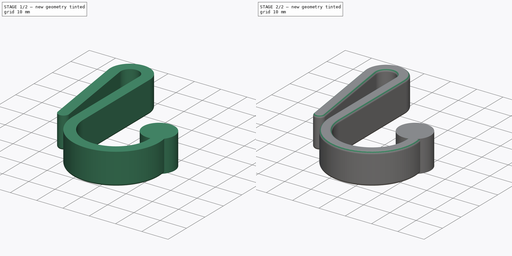
[diagram: build sequence overview — one tinted view per stage of 2, left to right]
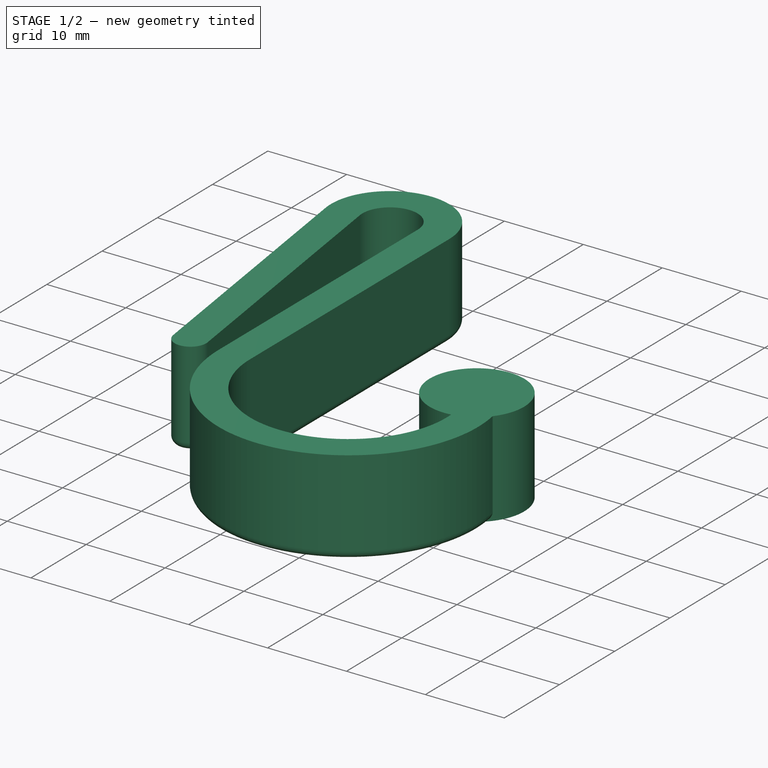
[diagram: stage 1 of 2 — iso view after this stage's code; geometry added in this stage tinted green]
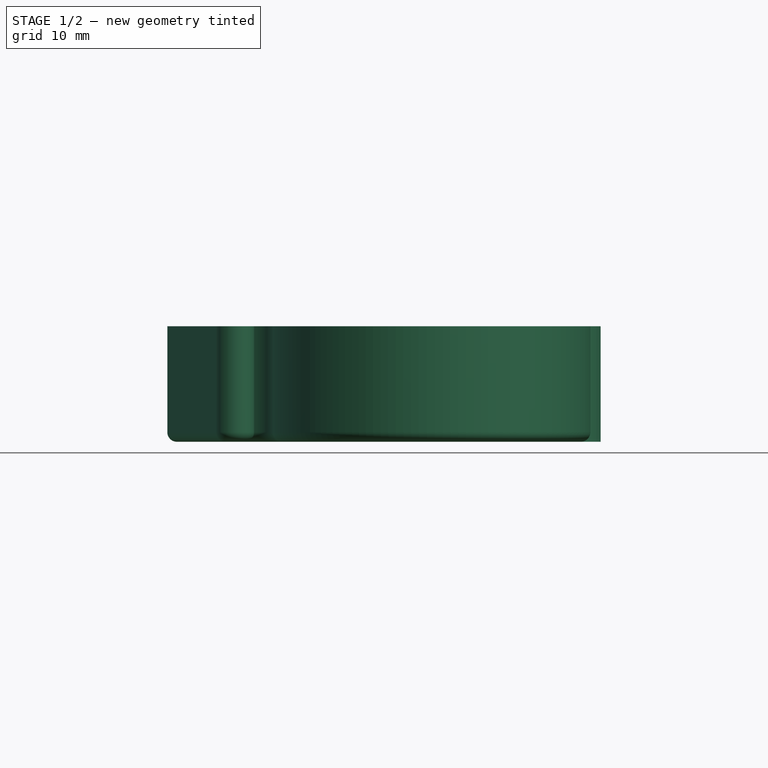
[diagram: stage 1 of 2 — front view after this stage's code; geometry added in this stage tinted green]
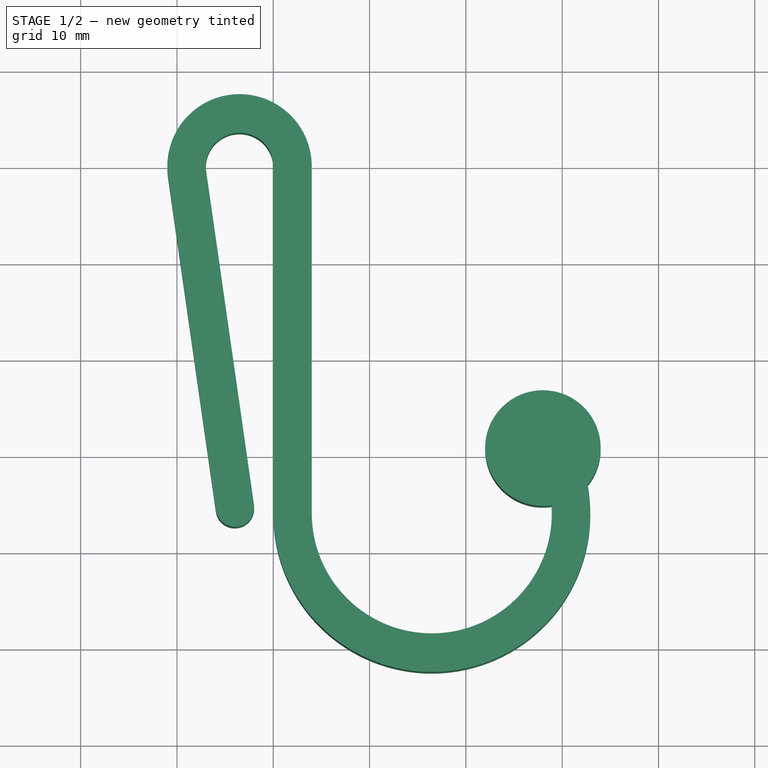
[diagram: stage 1 of 2 — top view after this stage's code; geometry added in this stage tinted green]
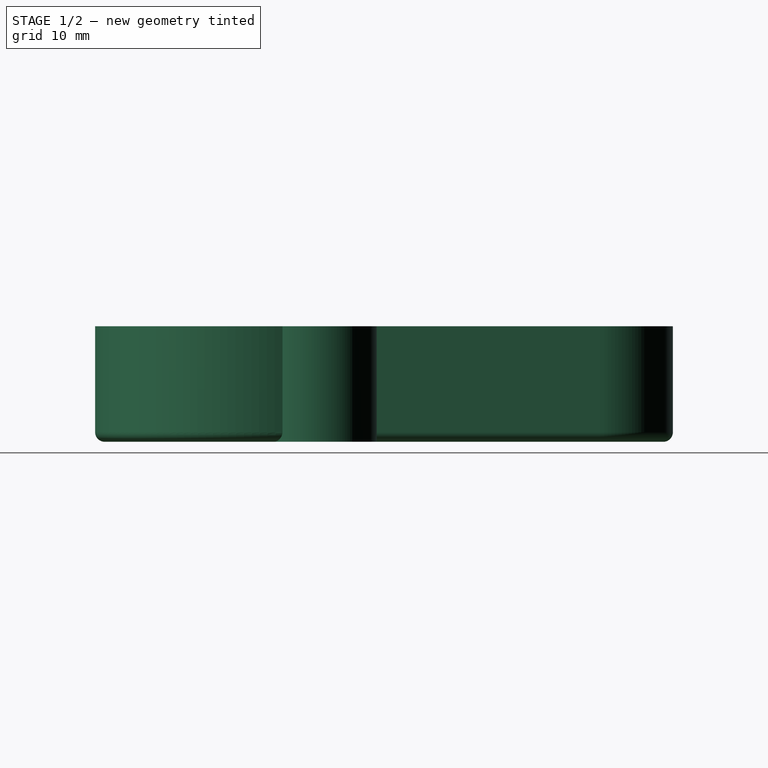
[diagram: stage 1 of 2 — right view after this stage's code; geometry added in this stage tinted green]
FCSTD DOCUMENT  (FreeCAD 0.16RUnknown)
Label: rolling_tray_hook
License: All rights reserved
LicenseURL: http://en.wikipedia.org/wiki/All_rights_reserved
objects: PartDesign::Fillet×2, Sketcher::SketchObject×1, PartDesign::Pad×1
note: 5 computed .brp shape members not serialized (recipe doc carries the construction recipe); baked Part::Feature solids carry a one-line shape summary decoded from their .brp

FEATURE [Sketcher::SketchObject] Sketch
  sketch-geometry (15):
    g0: LineSegment StartX=0 StartY=0 StartZ=0 EndX=0 EndY=-36.0373 EndZ=0
    g1: ArcOfCircle CenterX=-3.5 CenterY=0 CenterZ=0 NormalX=0 NormalY=0 NormalZ=1 Radius=3.5 StartAngle=0 EndAngle=3.28392
    g2: LineSegment StartX=-6.96461 StartY=-0.496461 StartZ=0 EndX=-2 EndY=-35.1426 EndZ=0
    g3: ArcOfCircle CenterX=-3.97978 CenterY=-35.4263 CenterZ=0 NormalX=0 NormalY=0 NormalZ=1 Radius=2 StartAngle=3.28392 EndAngle=6.42551
    g4: LineSegment StartX=-5.95955 StartY=-35.71 StartZ=0 EndX=-10.9242 EndY=-1.06385 EndZ=0
    g5: ArcOfCircle CenterX=-3.5 CenterY=0 CenterZ=0 NormalX=0 NormalY=0 NormalZ=1 Radius=7.5 StartAngle=0 EndAngle=3.28392
    g6: LineSegment StartX=4 StartY=0 StartZ=0 EndX=4 EndY=-36.0373 EndZ=0
    g7: ArcOfCircle CenterX=16.4627 CenterY=-36.0373 CenterZ=0 NormalX=0 NormalY=0 NormalZ=1 Radius=12.4627 StartAngle=3.14159 EndAngle=6.35154
    g8: ArcOfCircle CenterX=16.4627 CenterY=-36.0373 CenterZ=0 NormalX=0 NormalY=0 NormalZ=1 Radius=16.4627 StartAngle=3.14159 EndAngle=6.46603
    g9: ArcOfCircle CenterX=28 CenterY=-29.2534 CenterZ=0 NormalX=0 NormalY=0 NormalZ=1 Radius=6 StartAngle=5.59934 EndAngle=11.1455
    g10: LineSegment [constr] StartX=0 StartY=-36.0373 StartZ=0 EndX=4 EndY=-36.0373 EndZ=0
    g11: LineSegment [constr] StartX=-5.95955 StartY=-35.71 StartZ=0 EndX=-2 EndY=-35.1426 EndZ=0
    g12: LineSegment [constr] StartX=22 StartY=-5.52926 StartZ=0 EndX=22 EndY=-23.6266 EndZ=0
    g13: LineSegment [constr] StartX=-16.5806 StartY=7.5 StartZ=0 EndX=51.6928 EndY=7.5 EndZ=0
    g14: LineSegment [constr] StartX=-14.1831 StartY=-52.5 StartZ=0 EndX=61.8698 EndY=-52.5 EndZ=0
  constraints (41):
    c: Coincident(g0,g-1)
    c: PointOnObject(g0,g-2)
    c: PointOnObject(g1,g-1)
    c: Coincident(g1,g-1)
    c: Coincident(g2,g1)
    c: Coincident(g3,g2)
    c: Coincident(g4,g3)
    c: Coincident(g5,g1)
    c: PointOnObject(g5,g-1)
    c: Coincident(g5,g4)
    c: Coincident(g6,g5)
    c: Vertical(g6)
    c: Coincident(g7,g6)
    c: Coincident(g8,g7)
    c: Coincident(g8,g0)
    c: Coincident(g9,g7)
    c: Coincident(g9,g8)
    c: DistanceX(g1,g-1) = 3.5
    c: DistanceX(g-1,g5) = 4
    c: Coincident(g10,g0)
    c: Coincident(g10,g6)
    c: Horizontal(g10)
    c: Tangent(g7,g6)
    c: Coincident(g11,g3)
    c: Coincident(g11,g2)
    c: Distance(g7,g9) = 6
    c: Distance(g4,g3) = 35
    c: Vertical(g12)
    c: Tangent(g12,g9)
    c: DistanceX(g6,g12) = 18
    c: Tangent(g4,g5)
    c: Tangent(g1,g2)
    c: Tangent(g3,g4)
    c: Tangent(g3,g2)
    c: PointOnObject(g3,g11)
    c: Distance(g2,g0) = 2
    c: Horizontal(g13)
    c: Horizontal(g14)
    c: Tangent(g14,g8)
    c: DistanceY(g14,g13) = 60
    c: Tangent(g13,g5)
FEATURE [PartDesign::Pad] Pad
  Length = 12
  Length2 = 100
  Sketch = -> Sketch
  Type = 0
FEATURE [PartDesign::Fillet] Fillet
  Base = -> Pad [Edge15]
  Radius = 1
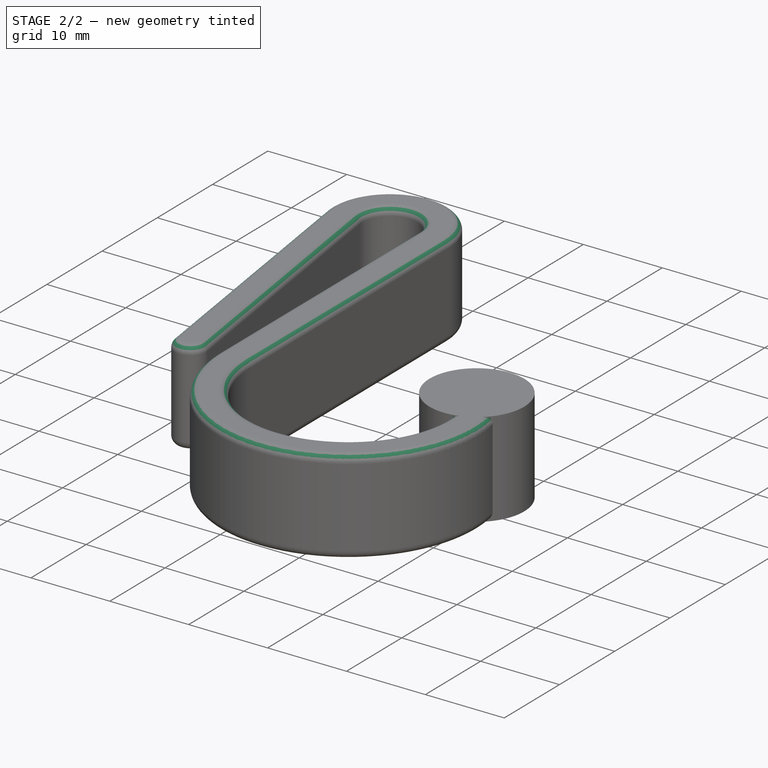
[diagram: stage 2 of 2 — iso view after this stage's code; geometry added in this stage tinted green]
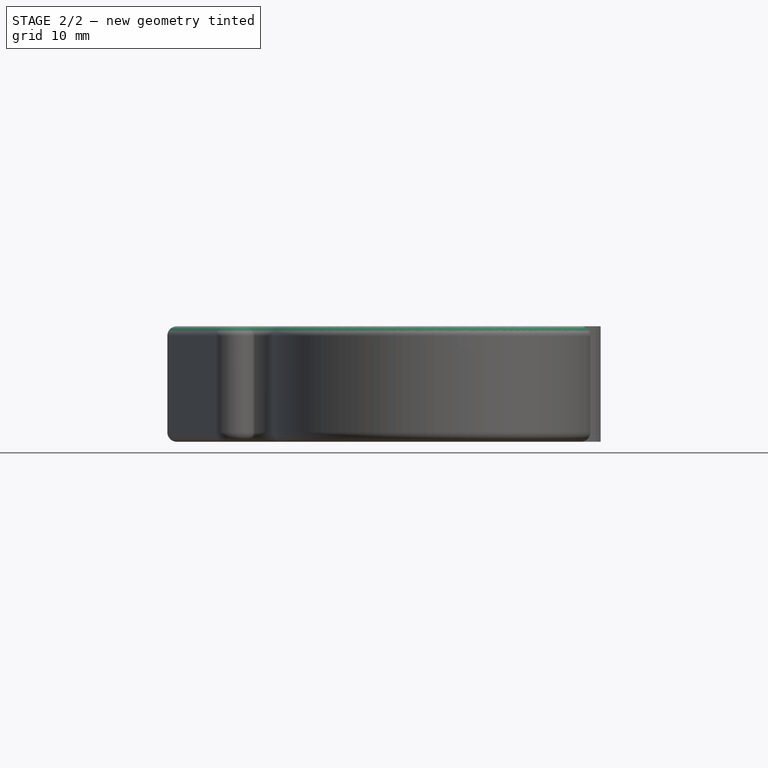
[diagram: stage 2 of 2 — front view after this stage's code; geometry added in this stage tinted green]
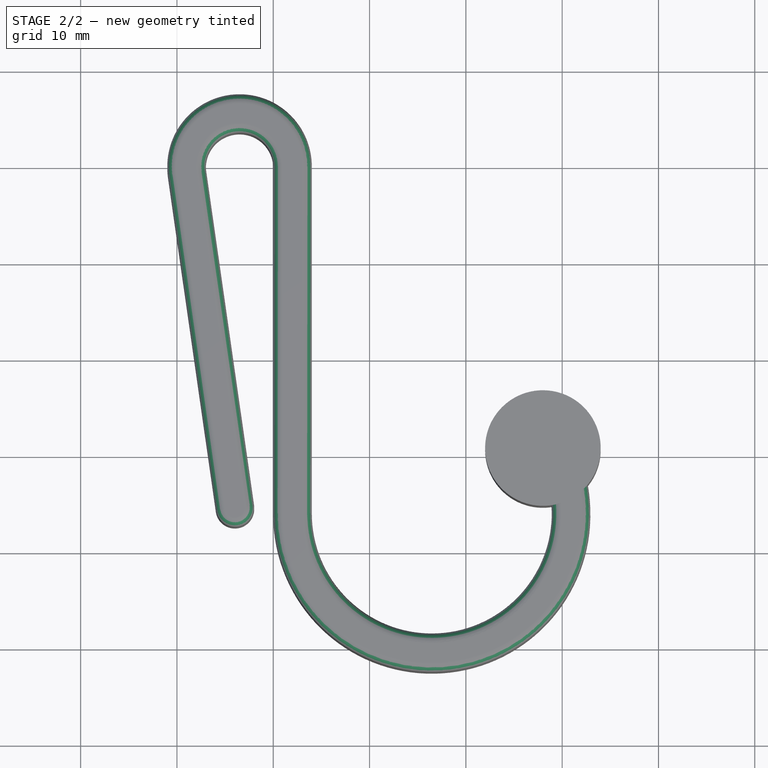
[diagram: stage 2 of 2 — top view after this stage's code; geometry added in this stage tinted green]
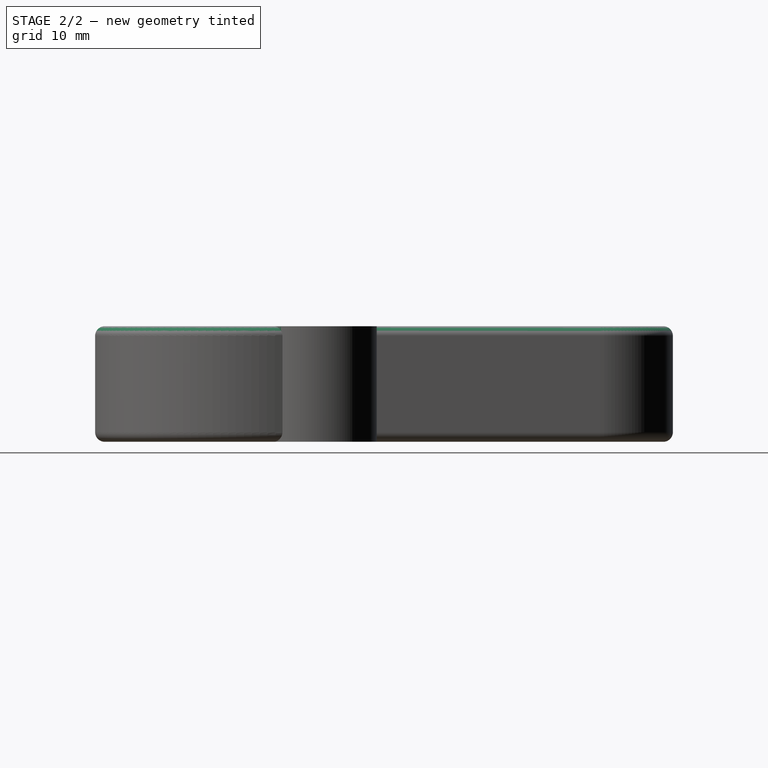
[diagram: stage 2 of 2 — right view after this stage's code; geometry added in this stage tinted green]
FEATURE [PartDesign::Fillet] Fillet001
  Base = -> Fillet [Edge14]
  Radius = 1
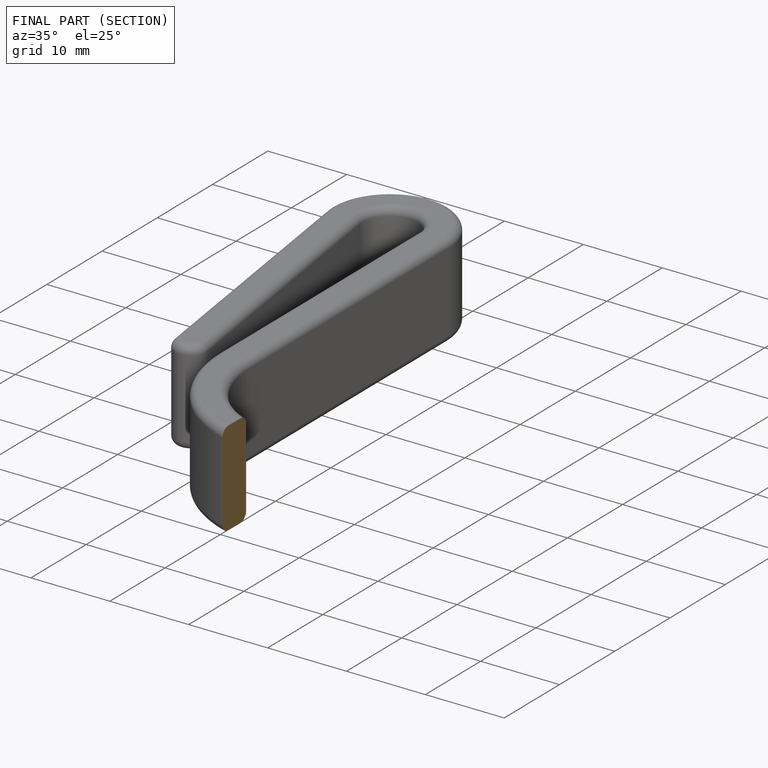
[diagram: finished part — half-section view (interior)]
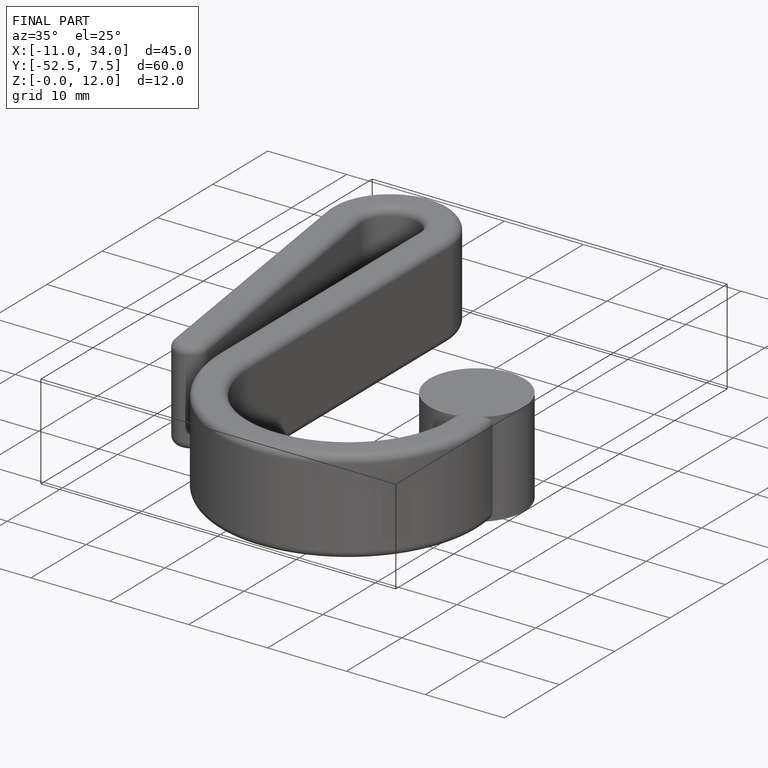
[diagram: finished part — iso view with bounding-box wireframe]
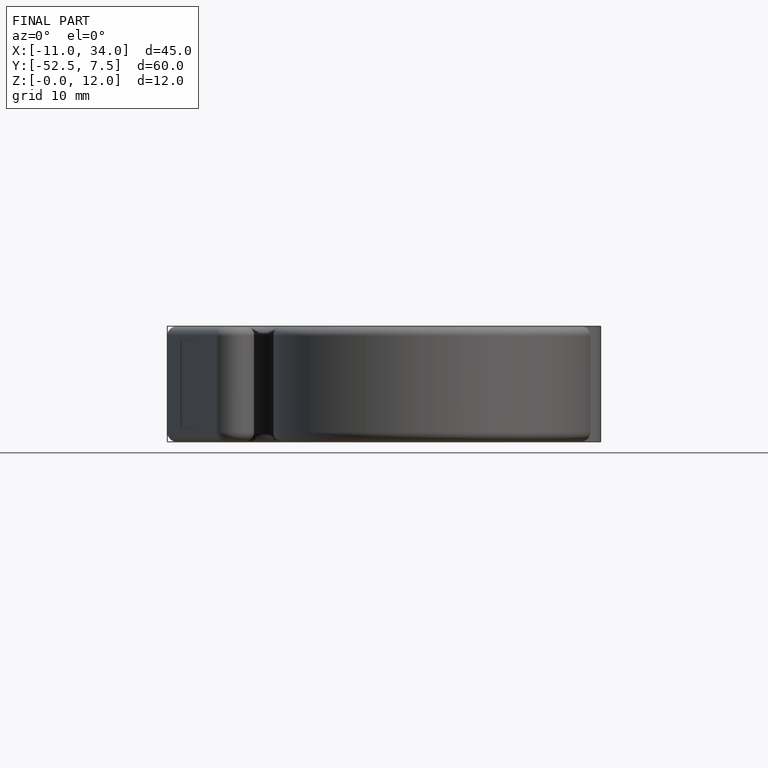
[diagram: finished part — front view with bounding-box wireframe]
